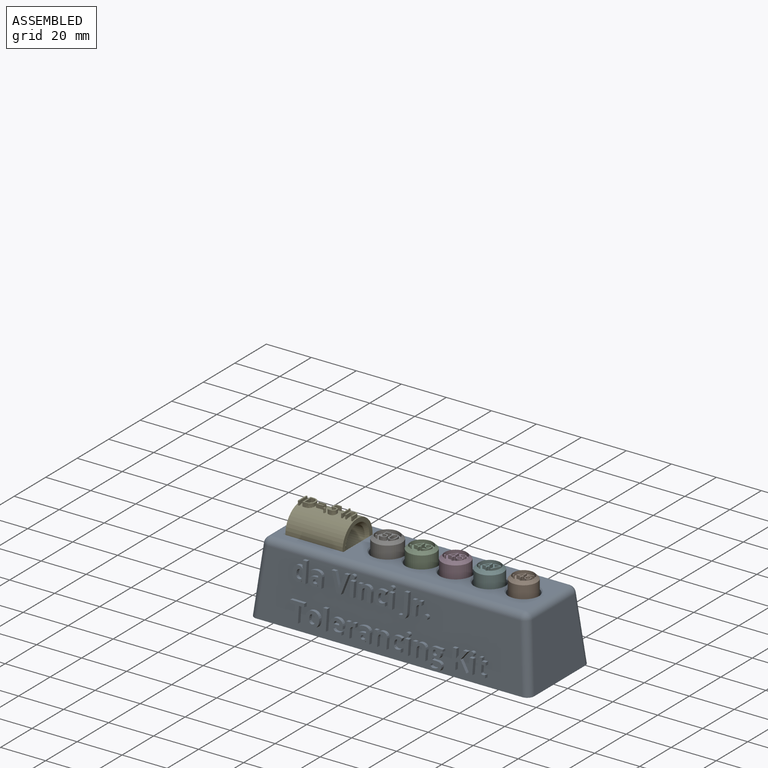
[diagram: assembled view]
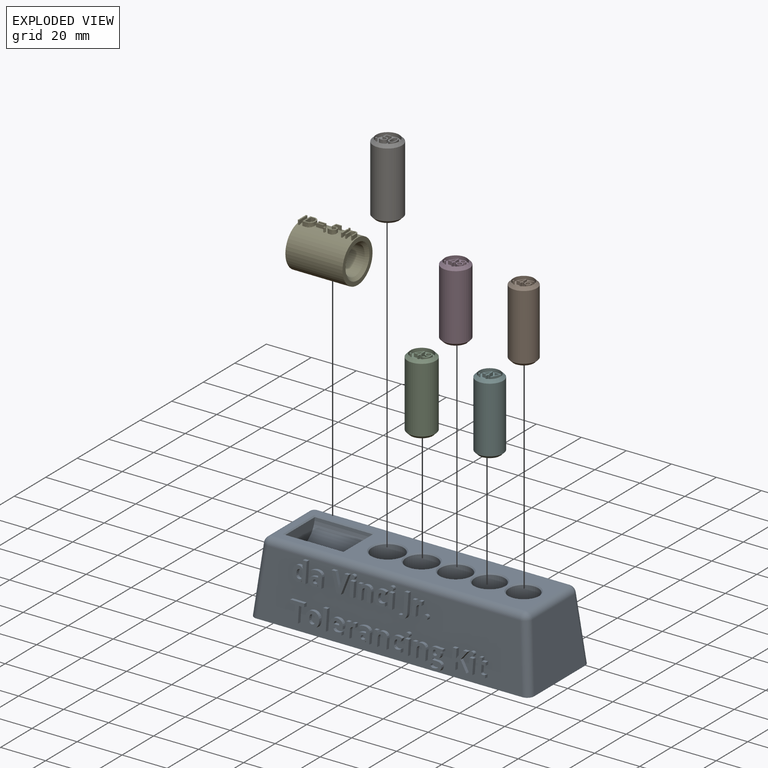
[diagram: exploded view]
GUIDED TOUR — MATED ASSEMBLY (Onshape document 18c6b997c5d6e5188a5f539b, AutoMate assembly 18c6b997c5d6e5188a5f539b_f4f6785865cfdccaa95f70aa_ef8ca63dddc976eb41bd2885_default)

This assembly has 7 components, labeled P0..P6 below (a component is one placed occurrence of a part; the same part can appear more than once), held together by 6 mates. A mate is a constraint between two components; its type names the relative motion it leaves free:
  PLANAR — leaves sliding in the plane through the listed point (normal = the listed direction) and rotation about that normal free,
  SLIDER — leaves translation along the listed axis free.
Axis/direction vectors are unit vectors and 'through' points are millimeter coordinates, both in the assembly's world frame.

MATES
  1. SLIDER "Slider 4": P2 <-> P0, axis (0.000, 0.000, -1.000) through (15.11, 0.00, 6.35) mm
  2. SLIDER "Slider 2": P5 <-> P0, axis (0.000, 0.000, -1.000) through (45.34, 0.00, 6.35) mm
  3. PLANAR "Planar 1": P0 <-> P4, direction (-1.000, 0.000, 0.000) through (-26.10, 0.00, 31.75) mm
  4. SLIDER "Slider 1": P1 <-> P0, axis (0.000, 0.000, -1.000) through (60.45, 0.00, 6.35) mm
  5. SLIDER "Slider 5": P6 <-> P0, axis (0.000, 0.000, -1.000) through (0.00, 0.00, 6.35) mm
  6. SLIDER "Slider 3": P3 <-> P0, axis (0.000, 0.000, -1.000) through (30.23, 0.00, 6.35) mm

ASSEMBLY ORDER
  1. P0 — the base component [order verified]
  2. P3 [order verified]
  3. P6 [order verified]
  4. P5 [order verified]
  5. P2 [order verified]
  6. P1 [order verified]
  7. P4 [order verified]
Order-tag legend:
  [order verified] — this step's position reverses a verified removal order: the component was checked to insert without passing through the ones already placed.

Of the 7 components, 0 carry the full construction recipe — the FeatureScript program that regenerates the part's solid from scratch; the rest are supplied as boundary geometry only.
Each toured component is shown spotlighted twice — in the assembled view, then in the exploded view, where a leader line traces a displaced component back to its assembled socket (saturated green if recipe-attached, orange if geometry-only; every other component desaturated gray) — followed by its recipe or geometry summary and the mates that hold it.
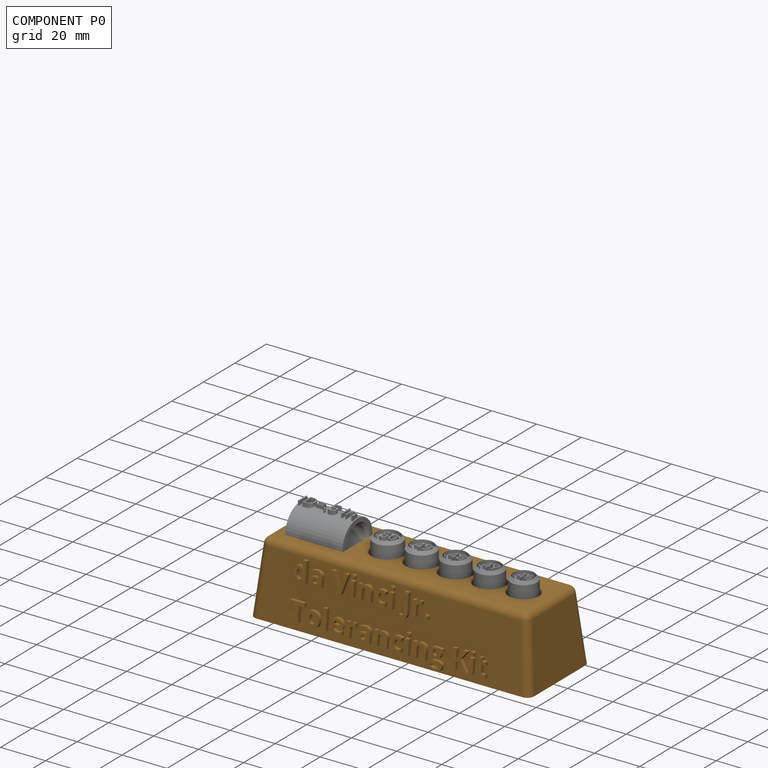
[diagram: component P0 — assembled]
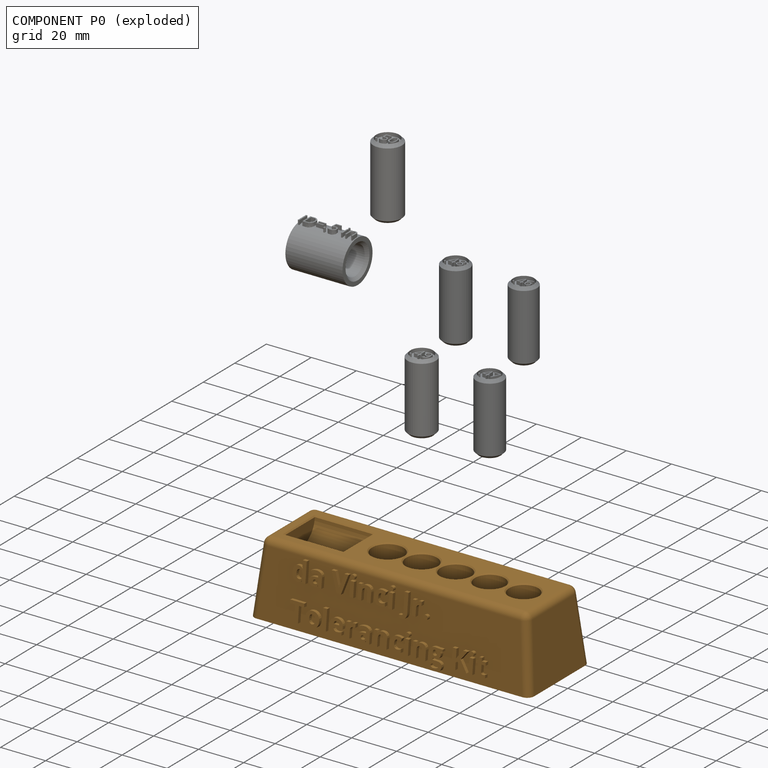
[diagram: component P0 — exploded]
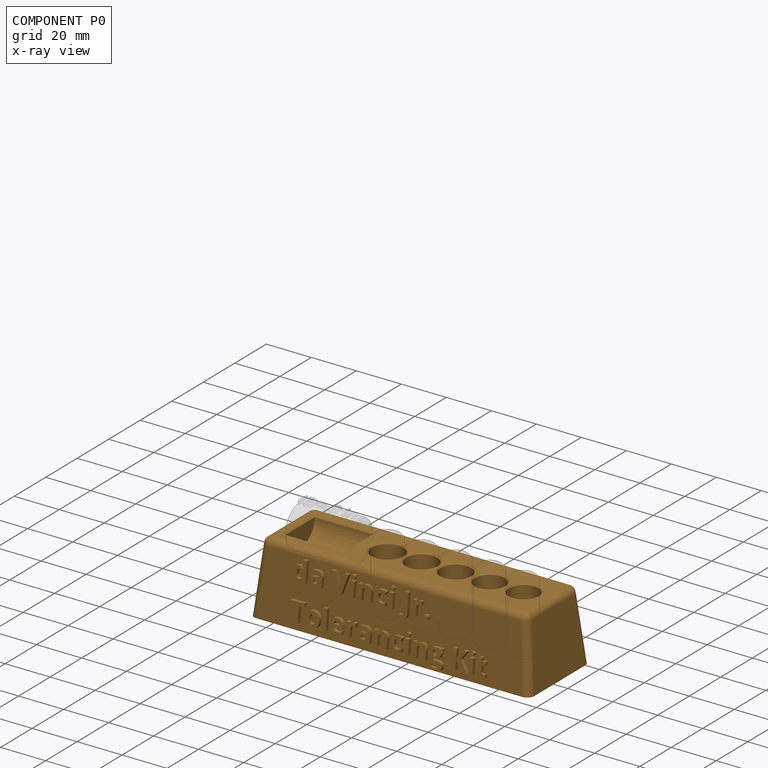
[diagram: component P0 — x-ray view]
COMPONENT P0 — geometry summary (no construction recipe available for this part):
  bounding box: 124.4 x 40.1 x 31.9 mm
  B-rep topology: 1 solid, 460 faces, 2466 edges
  volume: 58492 mm^3 (37% of its bounding box)
Held by: SLIDER mate "Slider 4" to P2; SLIDER mate "Slider 2" to P5; PLANAR mate "Planar 1" to P4; SLIDER mate "Slider 1" to P1; SLIDER mate "Slider 5" to P6; SLIDER mate "Slider 3" to P3.
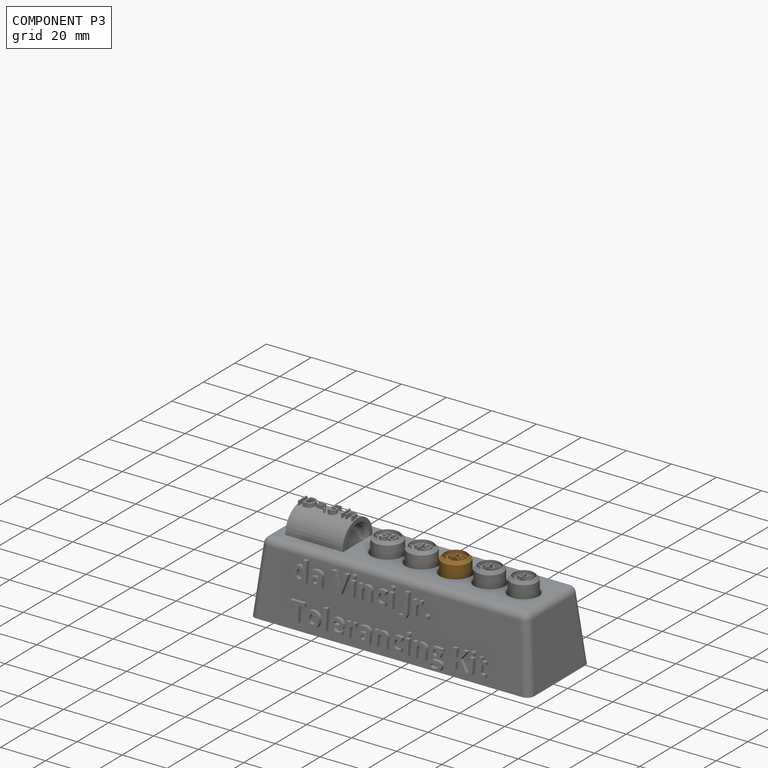
[diagram: component P3 — assembled]
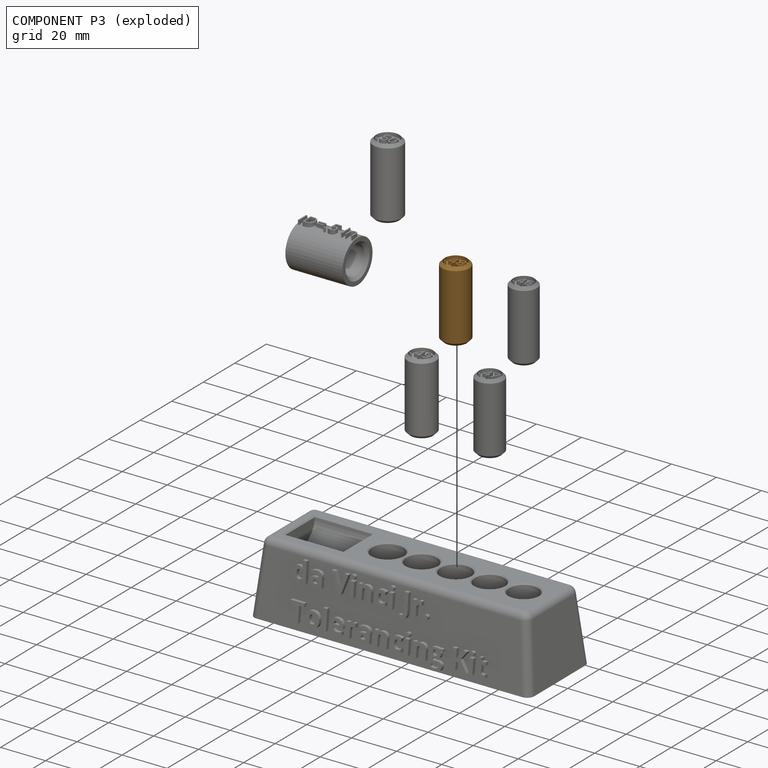
[diagram: component P3 — exploded]
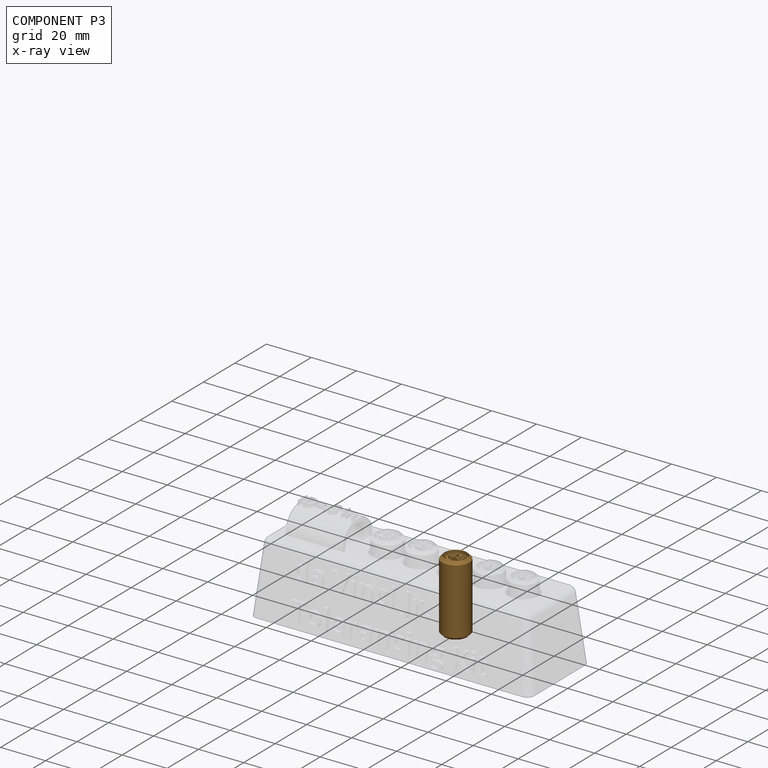
[diagram: component P3 — x-ray view]
COMPONENT P3 — geometry summary (no construction recipe available for this part):
  bounding box: 31.8 x 12.2 x 12.2 mm
  B-rep topology: 1 solid, 68 faces, 354 edges
  volume: 3550 mm^3 (75% of its bounding box)
Held by: SLIDER mate "Slider 3" to P0.
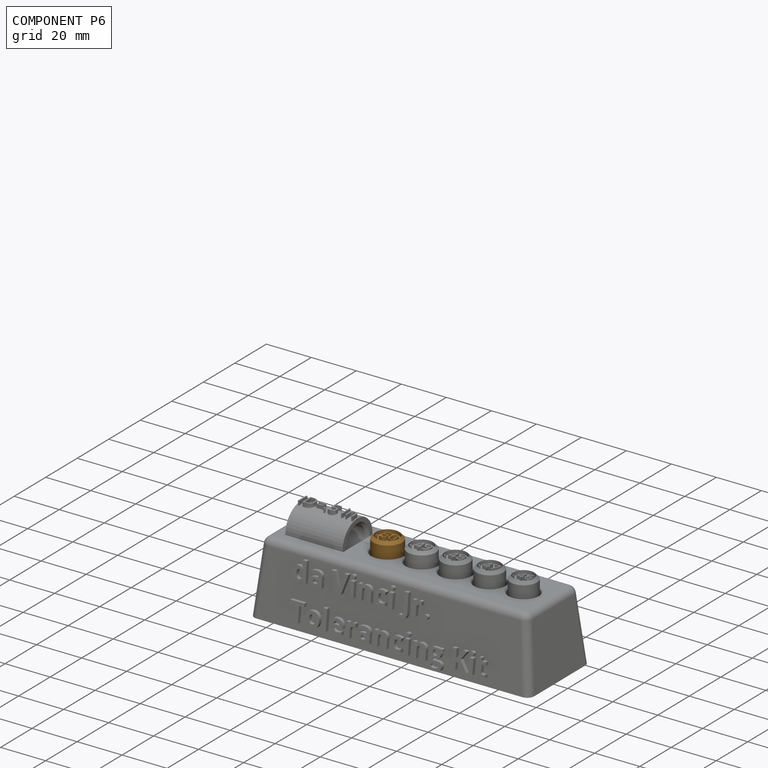
[diagram: component P6 — assembled]
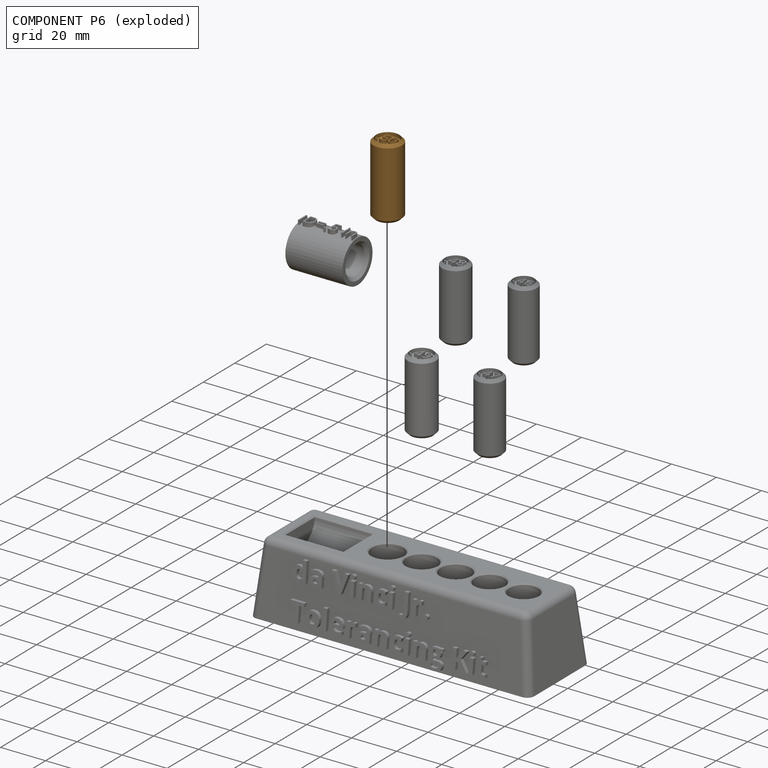
[diagram: component P6 — exploded]
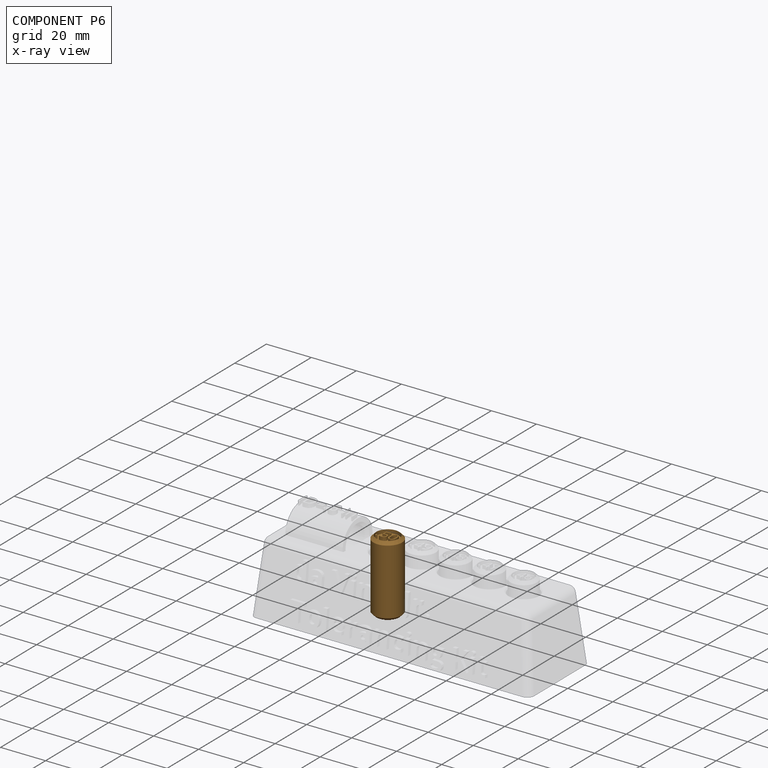
[diagram: component P6 — x-ray view]
COMPONENT P6 — geometry summary (no construction recipe available for this part):
  bounding box: 31.8 x 12.7 x 12.7 mm
  B-rep topology: 1 solid, 53 faces, 276 edges
  volume: 3850 mm^3 (75% of its bounding box)
Held by: SLIDER mate "Slider 5" to P0.
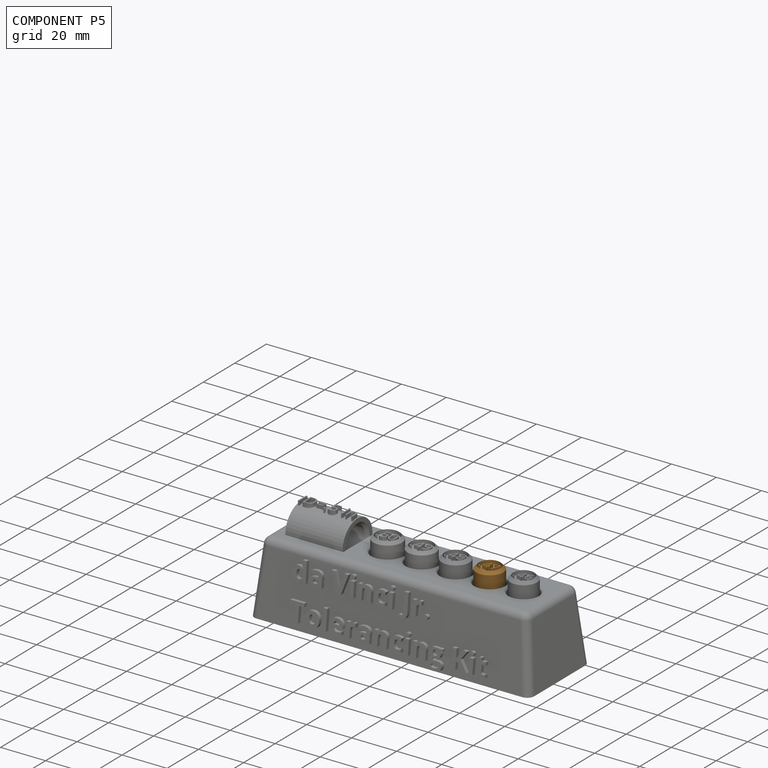
[diagram: component P5 — assembled]
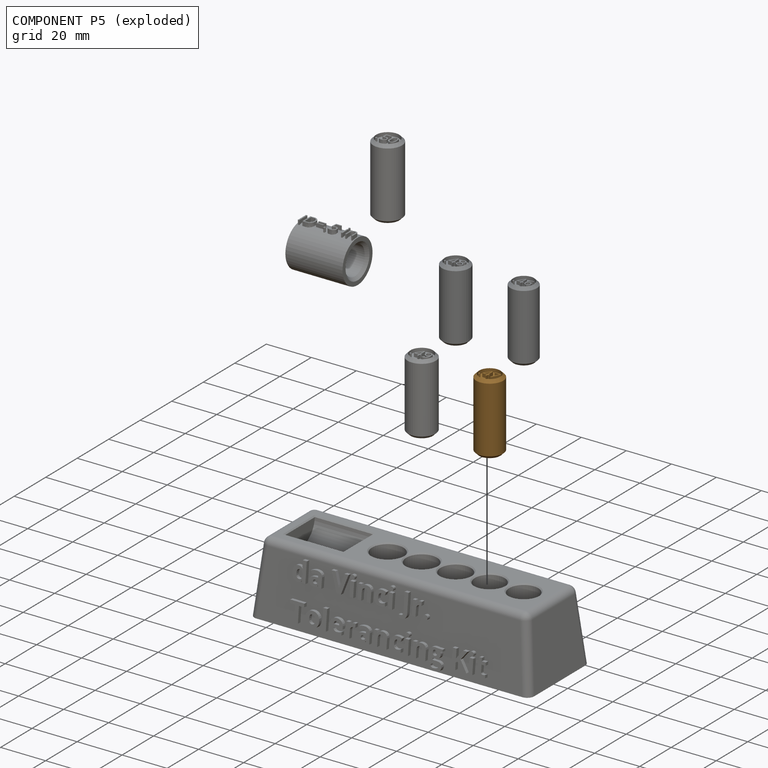
[diagram: component P5 — exploded]
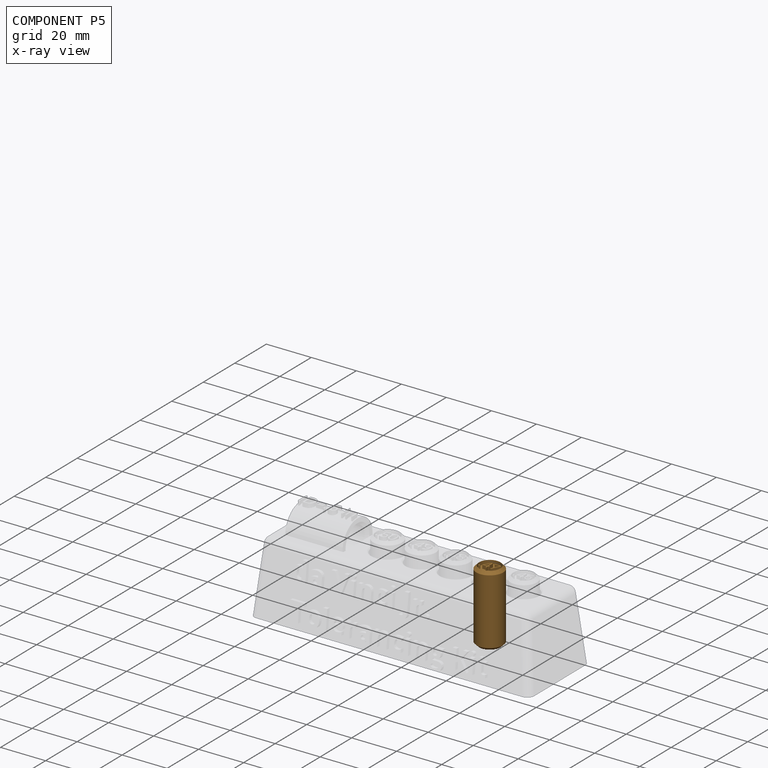
[diagram: component P5 — x-ray view]
COMPONENT P5 — geometry summary (no construction recipe available for this part):
  bounding box: 31.8 x 11.9 x 11.9 mm
  B-rep topology: 1 solid, 42 faces, 210 edges
  volume: 3400 mm^3 (75% of its bounding box)
Held by: SLIDER mate "Slider 2" to P0.
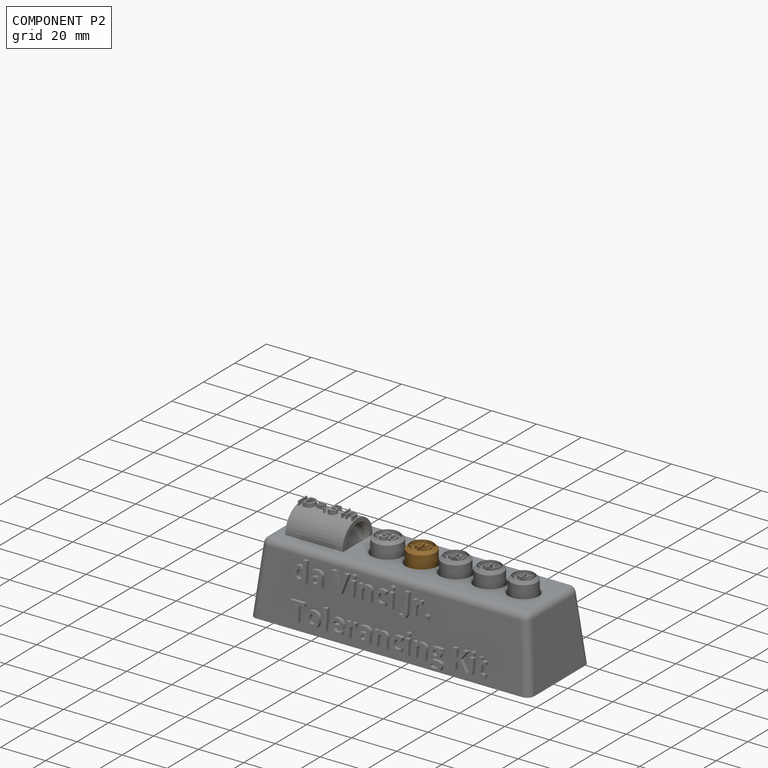
[diagram: component P2 — assembled]
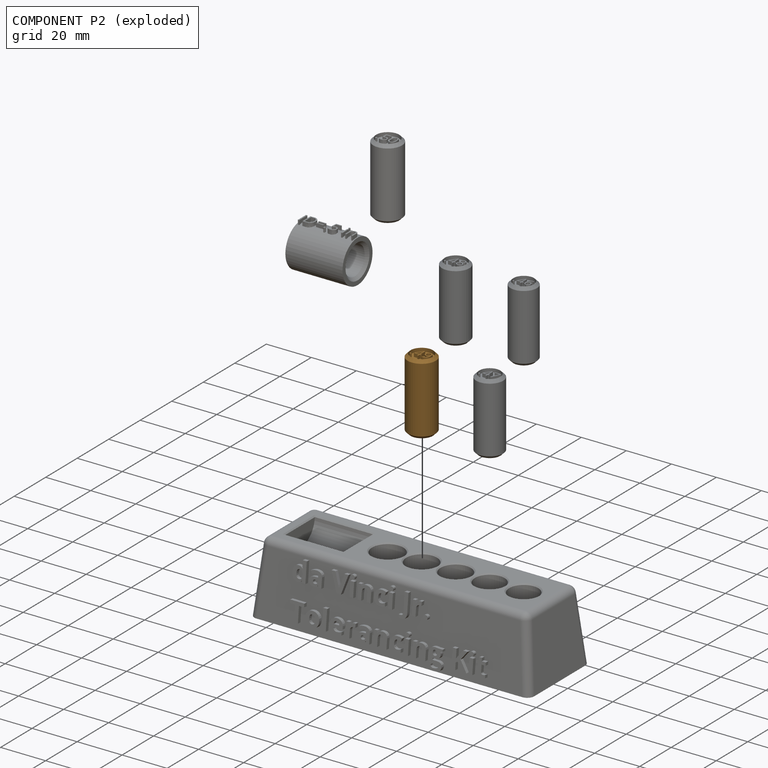
[diagram: component P2 — exploded]
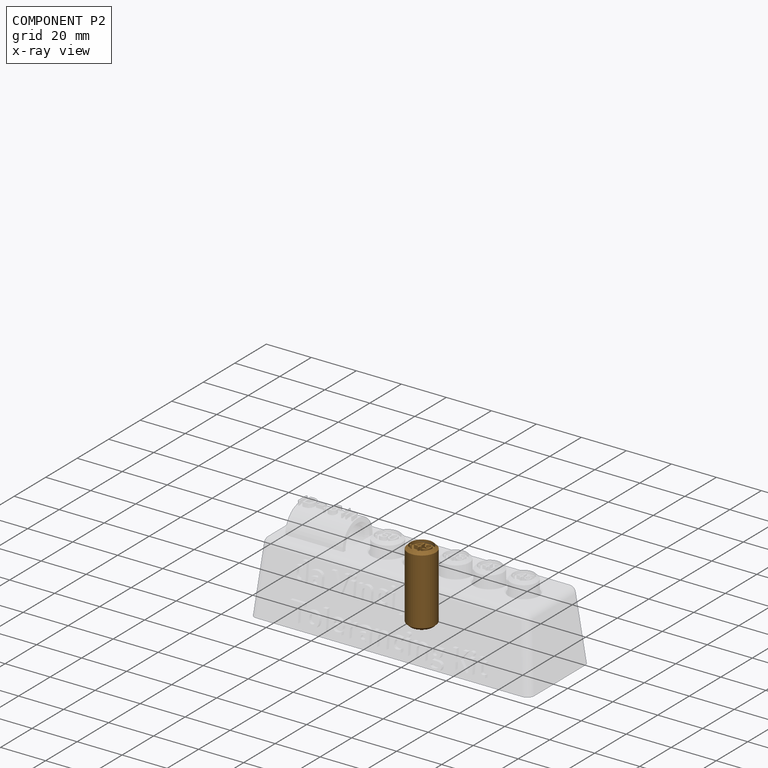
[diagram: component P2 — x-ray view]
COMPONENT P2 — geometry summary (no construction recipe available for this part):
  bounding box: 31.8 x 12.4 x 12.4 mm
  B-rep topology: 1 solid, 62 faces, 324 edges
  volume: 3698 mm^3 (75% of its bounding box)
Held by: SLIDER mate "Slider 4" to P0.
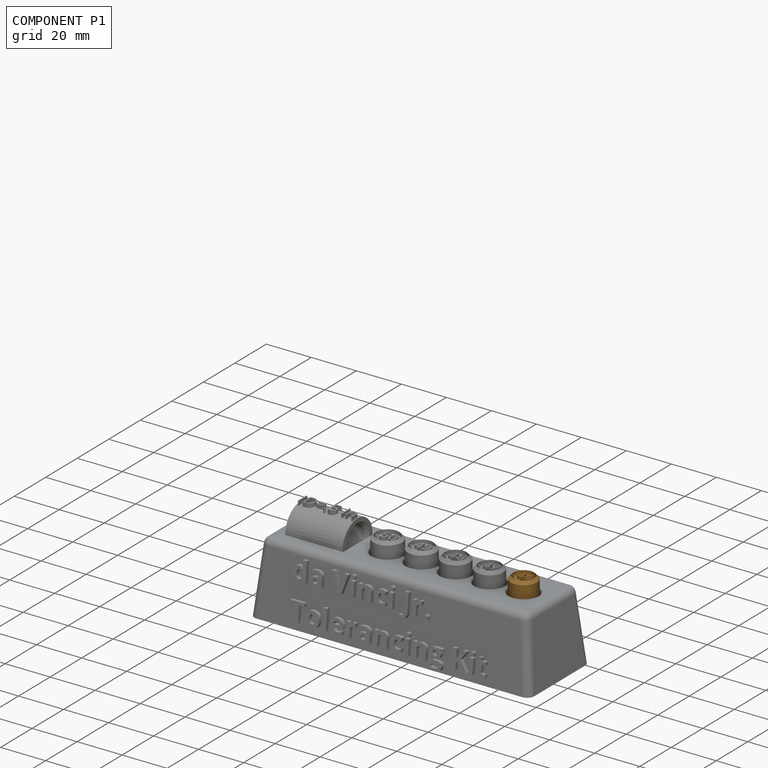
[diagram: component P1 — assembled]
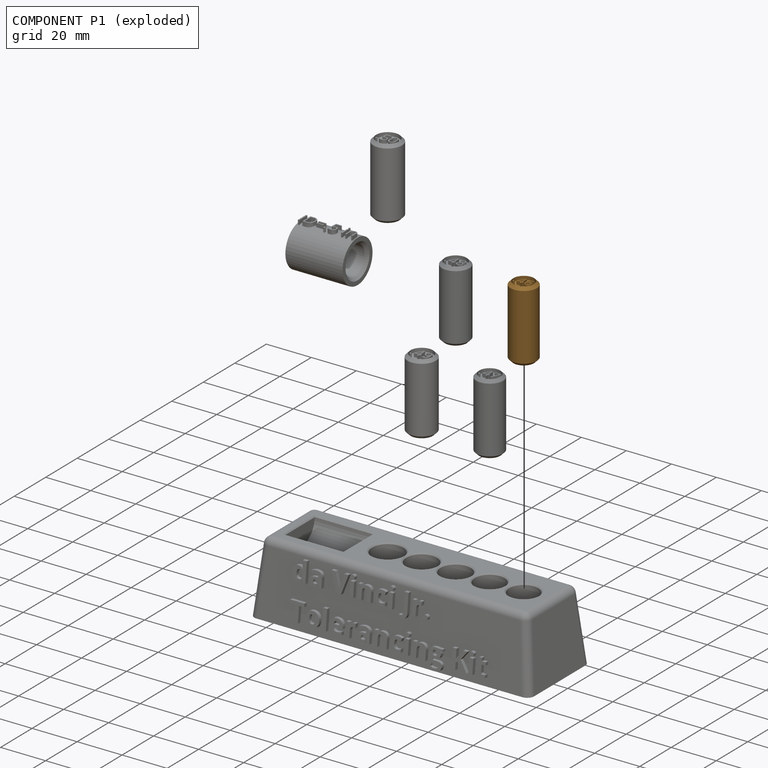
[diagram: component P1 — exploded]
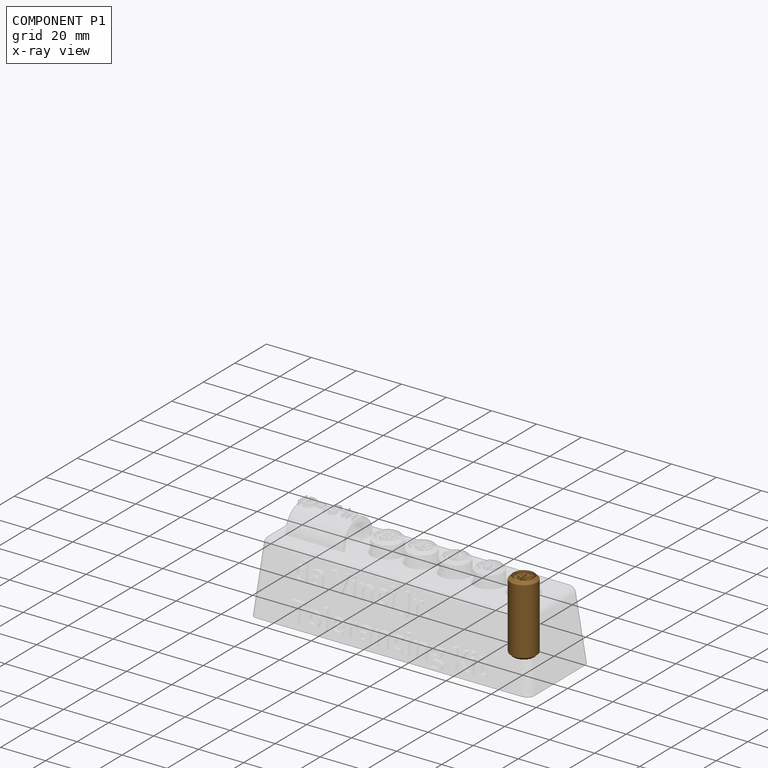
[diagram: component P1 — x-ray view]
COMPONENT P1 — geometry summary (no construction recipe available for this part):
  bounding box: 31.8 x 11.7 x 11.7 mm
  B-rep topology: 1 solid, 61 faces, 318 edges
  volume: 3259 mm^3 (75% of its bounding box)
Held by: SLIDER mate "Slider 1" to P0.
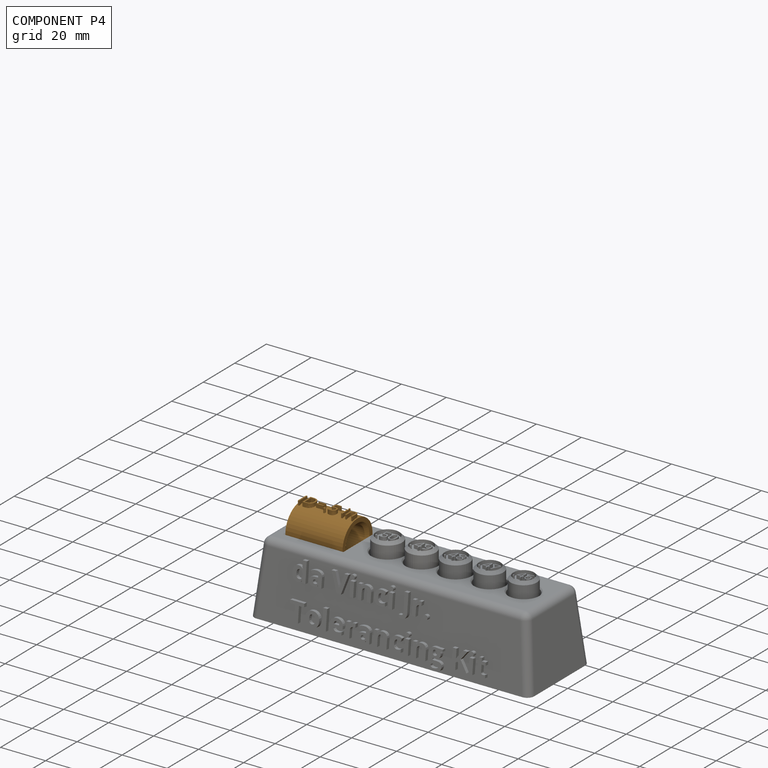
[diagram: component P4 — assembled]
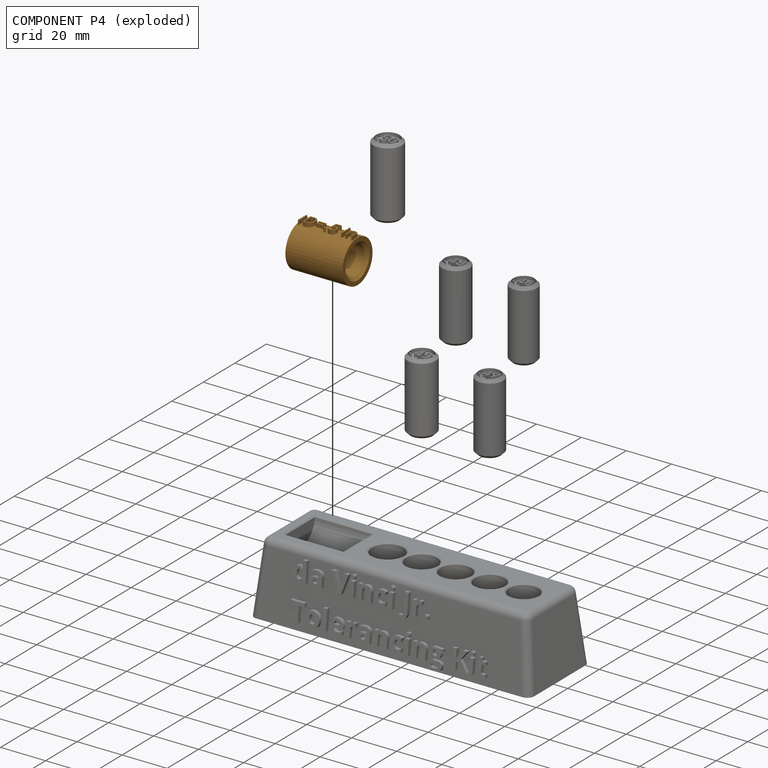
[diagram: component P4 — exploded]
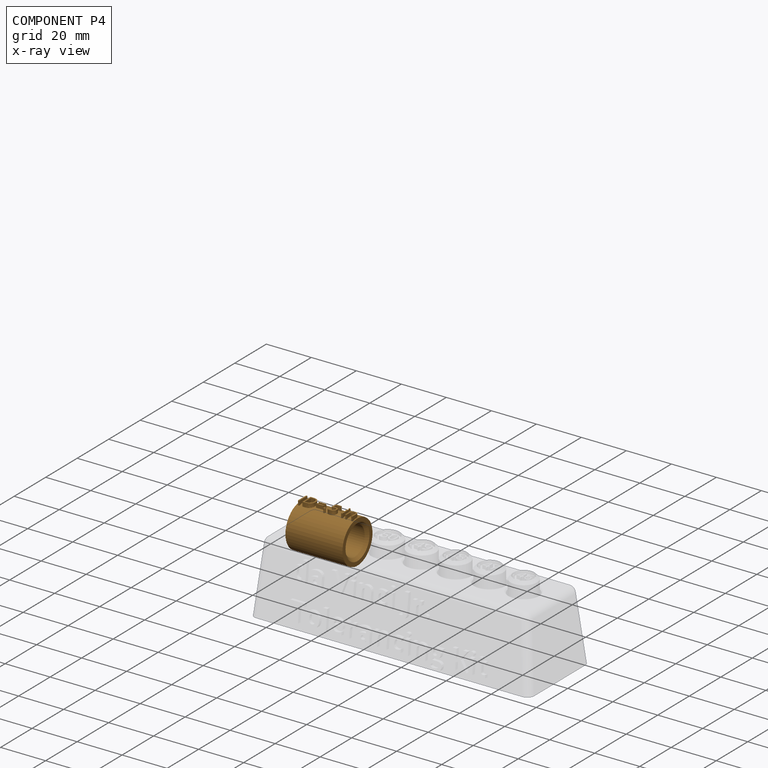
[diagram: component P4 — x-ray view]
COMPONENT P4 — geometry summary (no construction recipe available for this part):
  bounding box: 25.4 x 20.6 x 19.1 mm
  B-rep topology: 1 solid, 98 faces, 512 edges
  volume: 4004 mm^3 (40% of its bounding box)
Held by: PLANAR mate "Planar 1" to P0.
PROVENANCE & LICENSES
Assembly (occurrences, transforms, mates, per-part STEP geometry): AutoMate dataset, Zenodo record 7776208, CC0.
Construction recipes: CADFS (HuggingFace VladPyatov/CADFS, CC-BY-4.0, layered over the ABC dataset), FeatureScript reconstruction programs keyed by ABC model id.
Join: ABC meta listings map ABC model id -> Onshape documentId; within a shared document, parts are matched by geometric signature (bounding-box dims + volume at 0.1% relative tolerance, exact B-rep face/solid counts).
Verification: no recipe attachments in this assembly (7 components, all geometry-only).
Renders: orthographic iso camera (az 35 / el 25); the floor grid conveys scale (grid pitch printed in each image; no ruler). In the exploded view each component is displaced by its stored offset vector: the offsets alone carry the explosion direction (mate normal/axis signs are not orientation cues and do not encode it), and separation distances are assigned per mate-chain, not proportionally to assembly-order depth.
